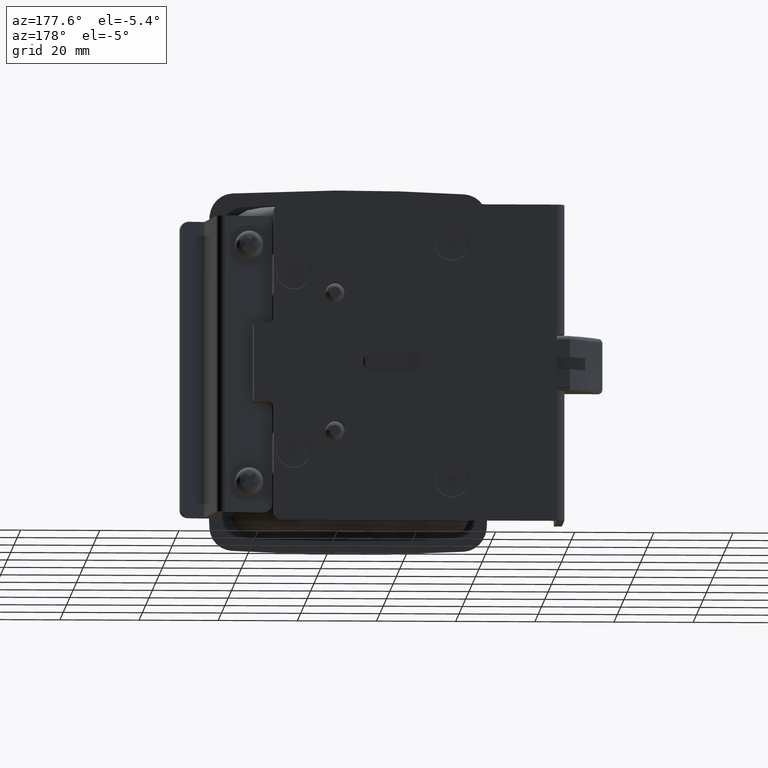
[diagram: clean part render]
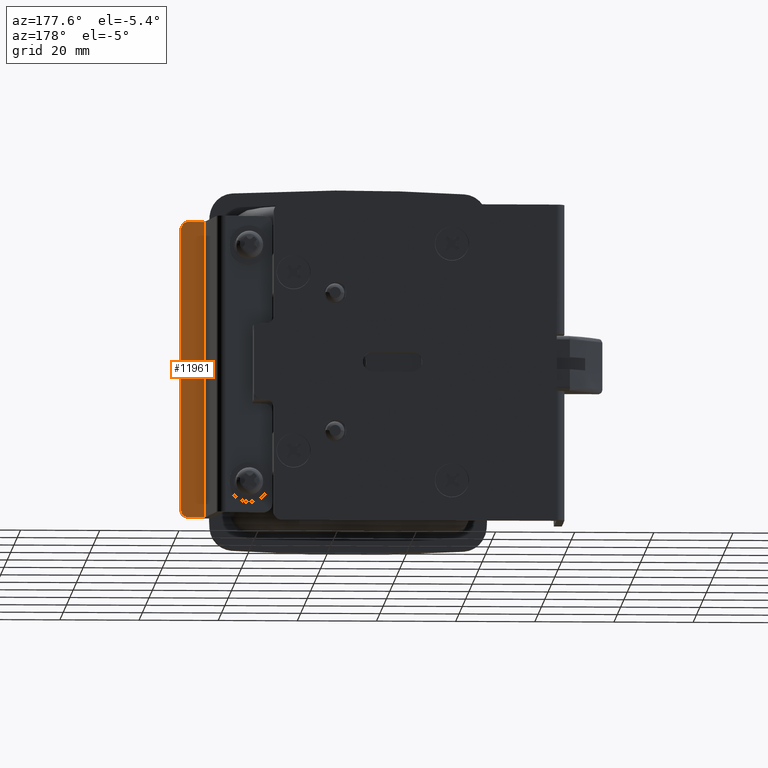
[diagram: same view with one face highlighted and labeled with its STEP entity id]
A machine part, auxiliary view. The second image highlights one B-rep face of the part: STEP entity #11961.
In plain terms, the highlighted face is a freeform B-spline surface patch.
Its self-contained STEP definition (entity closure, byte-faithful):
#11593=CARTESIAN_POINT('',(93.866064846714096,-23.420294913215098,37.499999999988248));
#11594=VERTEX_POINT('',#11593);
#11595=CARTESIAN_POINT('',(95.844949760772593,-23.130442369810350,35.499999999988198));
#11596=VERTEX_POINT('',#11595);
#11597=CARTESIAN_POINT('',(93.866064846714096,-23.420294913215098,37.499999999988212));
#11598=CARTESIAN_POINT('',(95.844949760770987,-23.130442369810584,37.499999999988212));
#11599=CARTESIAN_POINT('',(95.844949760772593,-23.130442369810350,35.499999999988198));
#11607=(BOUNDED_CURVE()B_SPLINE_CURVE(2,(#11597,#11598,#11599),.UNSPECIFIED.,.F.,.U.)CURVE()GEOMETRIC_REPRESENTATION_ITEM()QUASI_UNIFORM_CURVE()RATIONAL_B_SPLINE_CURVE((1.0,0.707106781186548,1.0))REPRESENTATION_ITEM(''));
#11608=EDGE_CURVE('',#11594,#11596,#11607,.T.);
#11717=CARTESIAN_POINT('',(95.844949760772593,-23.130442369810350,-35.500000000015753));
#11718=VERTEX_POINT('',#11717);
#11719=CARTESIAN_POINT('',(93.866064846714096,-23.420294913215098,-37.500000000015753));
#11720=VERTEX_POINT('',#11719);
#11721=CARTESIAN_POINT('',(95.844949760772593,-23.130442369810350,-35.500000000015753));
#11722=CARTESIAN_POINT('',(95.844949760770987,-23.130442369810584,-37.500000000015753));
#11723=CARTESIAN_POINT('',(93.866064846714096,-23.420294913215098,-37.500000000015753));
#11731=(BOUNDED_CURVE()B_SPLINE_CURVE(2,(#11721,#11722,#11723),.UNSPECIFIED.,.F.,.U.)CURVE()GEOMETRIC_REPRESENTATION_ITEM()QUASI_UNIFORM_CURVE()RATIONAL_B_SPLINE_CURVE((1.0,0.707106781186548,1.0))REPRESENTATION_ITEM(''));
#11732=EDGE_CURVE('',#11718,#11720,#11731,.T.);
#11769=CARTESIAN_POINT('',(89.908295018587197,-24.000000000030902,-37.500000000015753));
#11770=VERTEX_POINT('',#11769);
#11771=CARTESIAN_POINT('',(89.908295018587197,-24.000000000030902,-37.500000000015753));
#11772=CARTESIAN_POINT('',(93.866064846714096,-23.420294913215098,-37.500000000015753));
#11773=QUASI_UNIFORM_CURVE('',1,(#11771,#11772),.UNSPECIFIED.,.F.,.U.);
#11774=EDGE_CURVE('',#11770,#11720,#11773,.T.);
#11857=CARTESIAN_POINT('',(89.908295018587197,-24.000000000030902,37.499999999988198));
#11858=VERTEX_POINT('',#11857);
#11859=CARTESIAN_POINT('',(89.908295018587197,-24.000000000030902,37.499999999988198));
#11860=CARTESIAN_POINT('',(93.866064846714096,-23.420294913215098,37.499999999988248));
#11861=QUASI_UNIFORM_CURVE('',1,(#11859,#11860),.UNSPECIFIED.,.F.,.U.);
#11862=EDGE_CURVE('',#11858,#11594,#11861,.T.);
#11935=CARTESIAN_POINT('',(95.844949760772593,-23.130442369810350,35.499999999988198));
#11936=CARTESIAN_POINT('',(95.844949760772593,-23.130442369810350,-35.500000000015753));
#11937=QUASI_UNIFORM_CURVE('',1,(#11935,#11936),.UNSPECIFIED.,.F.,.U.);
#11938=EDGE_CURVE('',#11596,#11718,#11937,.T.);
#11944=CARTESIAN_POINT('',(96.141483758850129,-23.087008245401119,-41.246249854651403));
#11945=CARTESIAN_POINT('',(89.611759056629268,-24.043434412090061,-41.246249854651403));
#11946=CARTESIAN_POINT('',(96.141483758850129,-23.087008245401119,41.246251866280652));
#11947=CARTESIAN_POINT('',(89.611759056629268,-24.043434412090061,41.246251866280652));
#11948=B_SPLINE_SURFACE_WITH_KNOTS('',1,1,((#11944,#11946),(#11945,#11947)),.UNSPECIFIED.,.F.,.F.,.U.,(2,2),(2,2),(0.0,6.599398131581442),(0.0,82.492501720932054),.UNSPECIFIED.);
#11949=ORIENTED_EDGE('',*,*,#11938,.T.);
#11950=ORIENTED_EDGE('',*,*,#11732,.T.);
#11951=ORIENTED_EDGE('',*,*,#11774,.F.);
#11952=CARTESIAN_POINT('',(89.908295018587197,-24.000000000030902,37.499999999988198));
#11953=CARTESIAN_POINT('',(89.908295018587197,-24.000000000030902,-37.500000000015753));
#11954=QUASI_UNIFORM_CURVE('',1,(#11952,#11953),.UNSPECIFIED.,.F.,.U.);
#11955=EDGE_CURVE('',#11858,#11770,#11954,.T.);
#11956=ORIENTED_EDGE('',*,*,#11955,.F.);
#11957=ORIENTED_EDGE('',*,*,#11862,.T.);
#11958=ORIENTED_EDGE('',*,*,#11608,.T.);
#11959=EDGE_LOOP('',(#11949,#11950,#11951,#11956,#11957,#11958));
#11960=FACE_OUTER_BOUND('',#11959,.T.);
#11961=ADVANCED_FACE('',(#11960),#11948,.T.);